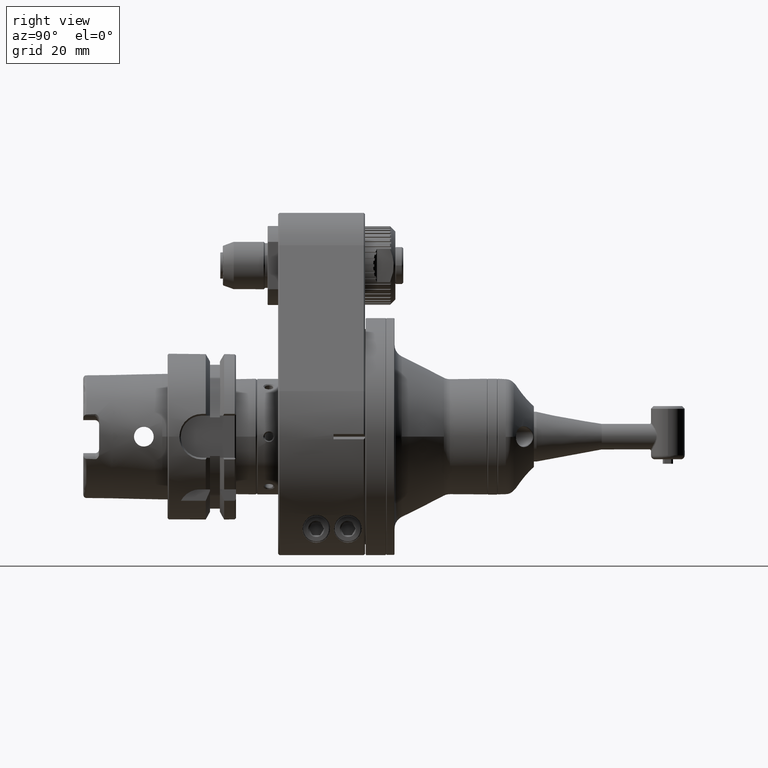
[diagram: clean part render]
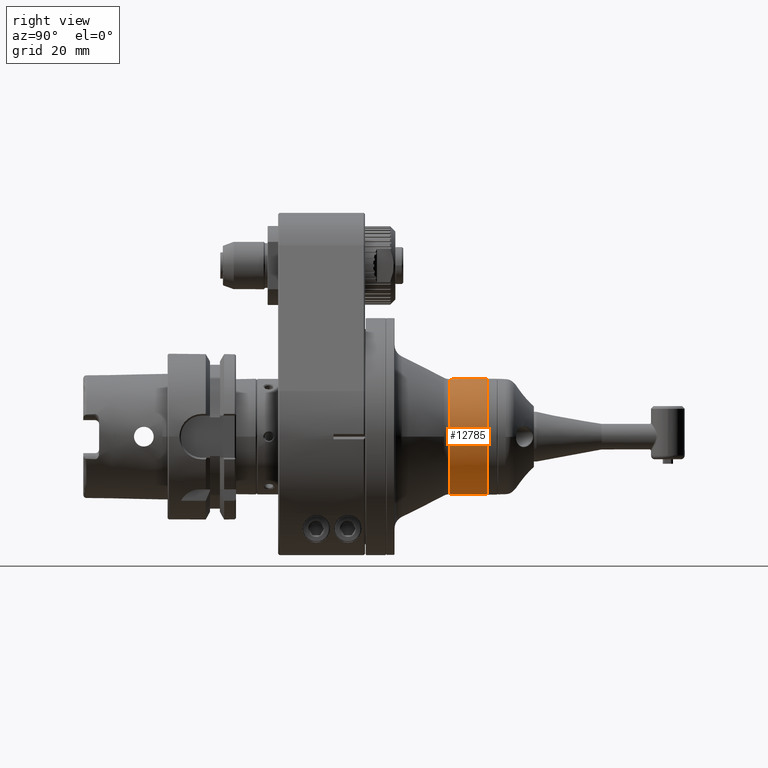
[diagram: same view with one face highlighted and labeled with its STEP entity id]
A machine part, right view. The second image highlights one B-rep face of the part: STEP entity #12785.
In plain terms, the highlighted cylindrical surface (bore or boss wall) has radius 22 mm, axis along (0, 1, 0).
Its self-contained STEP definition (entity closure, byte-faithful):
#563=LINE('',#19386,#1538);
#1538=VECTOR('',#15350,22.);
#2471=CYLINDRICAL_SURFACE('',#13668,22.);
#2800=FACE_OUTER_BOUND('',#3582,.T.);
#3582=EDGE_LOOP('',(#8624,#8625,#8626,#8627,#8628,#8629));
#4463=CIRCLE('',#13665,22.);
#4464=CIRCLE('',#13666,22.);
#4466=CIRCLE('',#13669,22.);
#4467=CIRCLE('',#13670,22.);
#5207=VERTEX_POINT('',#19376);
#5208=VERTEX_POINT('',#19377);
#5209=VERTEX_POINT('',#19382);
#5210=VERTEX_POINT('',#19383);
#6529=EDGE_CURVE('',#5207,#5208,#4463,.T.);
#6530=EDGE_CURVE('',#5208,#5207,#4464,.T.);
#6532=EDGE_CURVE('',#5209,#5210,#4466,.T.);
#6533=EDGE_CURVE('',#5210,#5209,#4467,.T.);
#6534=EDGE_CURVE('',#5209,#5207,#563,.T.);
#8624=ORIENTED_EDGE('',*,*,#6532,.T.);
#8625=ORIENTED_EDGE('',*,*,#6533,.T.);
#8626=ORIENTED_EDGE('',*,*,#6534,.T.);
#8627=ORIENTED_EDGE('',*,*,#6529,.T.);
#8628=ORIENTED_EDGE('',*,*,#6530,.T.);
#8629=ORIENTED_EDGE('',*,*,#6534,.F.);
#12785=ADVANCED_FACE('',(#2800),#2471,.T.);
#13665=AXIS2_PLACEMENT_3D('',#19378,#15338,#15339);
#13666=AXIS2_PLACEMENT_3D('',#19379,#15340,#15341);
#13668=AXIS2_PLACEMENT_3D('',#19381,#15344,#15345);
#13669=AXIS2_PLACEMENT_3D('',#19384,#15346,#15347);
#13670=AXIS2_PLACEMENT_3D('',#19385,#15348,#15349);
#15338=DIRECTION('center_axis',(0.,1.,0.));
#15339=DIRECTION('ref_axis',(1.,0.,0.));
#15340=DIRECTION('center_axis',(0.,1.,0.));
#15341=DIRECTION('ref_axis',(1.,0.,0.));
#15344=DIRECTION('center_axis',(0.,1.,0.));
#15345=DIRECTION('ref_axis',(1.,0.,0.));
#15346=DIRECTION('center_axis',(0.,-1.,0.));
#15347=DIRECTION('ref_axis',(1.,0.,0.));
#15348=DIRECTION('center_axis',(0.,-1.,0.));
#15349=DIRECTION('ref_axis',(1.,0.,0.));
#15350=DIRECTION('',(0.,-1.,0.));
#19376=CARTESIAN_POINT('',(-22.,57.2003937954,2.69422295812418E-15));
#19377=CARTESIAN_POINT('',(-21.9999940781353,57.2003937954,-0.0161419333703804));
#19378=CARTESIAN_POINT('Origin',(0.,57.2003937954,0.));
#19379=CARTESIAN_POINT('Origin',(0.,57.2003937954,0.));
#19381=CARTESIAN_POINT('Origin',(0.,-3.75,0.));
#19382=CARTESIAN_POINT('',(-22.,71.3,0.));
#19383=CARTESIAN_POINT('',(-2.69422295812418E-15,71.3,22.));
#19384=CARTESIAN_POINT('Origin',(0.,71.3,0.));
#19385=CARTESIAN_POINT('Origin',(0.,71.3,0.));
#19386=CARTESIAN_POINT('',(-22.,-3.75,2.69422295812418E-15));